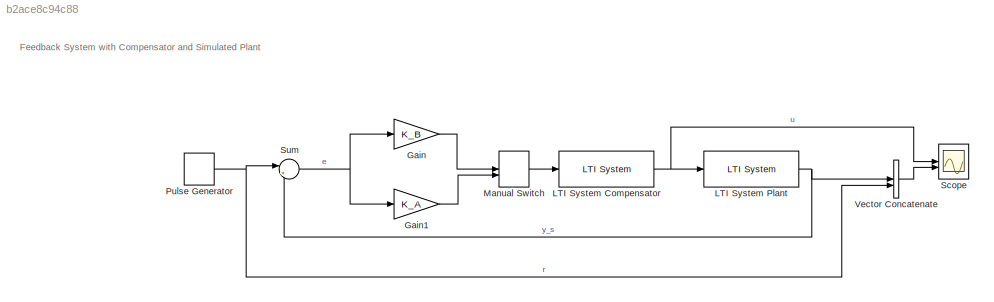
MODEL slx_b2ace8c94c88
KIND model
CONFIG AbsTol = auto
CONFIG EnableMultiTasking = off
CONFIG FixedStep = auto
CONFIG MaxStep = auto
CONFIG MinStep = auto
CONFIG RelTol = 1e-3
CONFIG SampleTimeConstraint = Unconstrained
CONFIG SolverName = VariableStepAuto
CONFIG StartTime = 0.0
CONFIG StopTime = 60
BLOCK [Gain] Gain
  Gain = K_B
BLOCK [Gain] Gain1
  Gain = K_A
BLOCK [Reference] LTI System Compensator  REF=cstblocks/LTI System
  SourceBlock = cstblocks/LTI System
  SourceType = LTI Block
BLOCK [Reference] LTI System Plant  REF=cstblocks/LTI System
  SourceBlock = cstblocks/LTI System
  SourceType = LTI Block
BLOCK [ManualSwitch] Manual Switch
BLOCK [DiscretePulseGenerator] Pulse Generator
  Period = 10
  PulseType = Time based
  PulseWidth = 50
BLOCK [Scope] Scope
  Floating = off
  NumInputPorts = 2
  ScopeSpecificationString = Simulink.scopes.TimeScopeBlockCfg('CurrentConfiguration', extmgr.ConfigurationSet(extmgr.Configuration('Core','General UI',true),extmgr.Configuration('Core','Source UI',true),extmgr.Configuration('Sources','WiredSimulink',true,'DataLogging',true,'DataLoggingSaveFormat','StructureWithTime'),extmgr.Configuration('Visuals','Time Domain',true,'SerializedDisplays',{struct('MinYLimReal','-27.50017','Max...<+2051ch>
BLOCK [Sum] Sum
  Inputs = |+-
BLOCK [Concatenate] Vector Concatenate
ANNOTATION (root): Feedback System with Compensator and Simulated Plant
LINE Gain1:1 -> Manual Switch:2
LINE Gain:1 -> Manual Switch:1
NET LTI System Compensator:1 -> LTI System Plant:1, Scope:1
NET LTI System Plant:1 -> Sum:2, Vector Concatenate:1
LINE Manual Switch:1 -> LTI System Compensator:1
NET Pulse Generator:1 -> Sum:1, Vector Concatenate:2
NET Sum:1 -> Gain1:1, Gain:1
LINE Vector Concatenate:1 -> Scope:2
note: NET lines group one-source signal fan-out (src -> all destinations, sorted); 1:1 wires keep LINE
